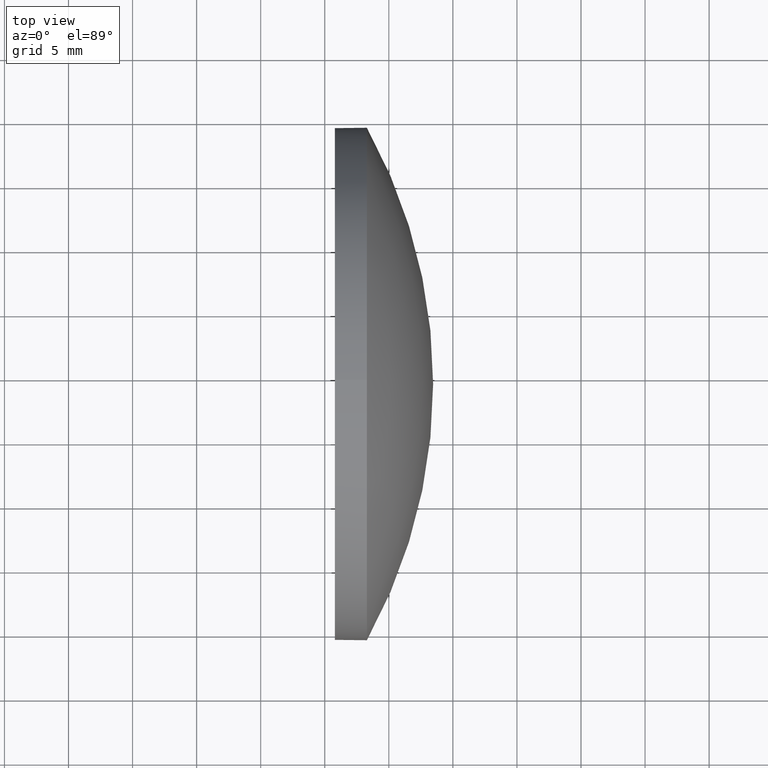
[diagram: clean part render]
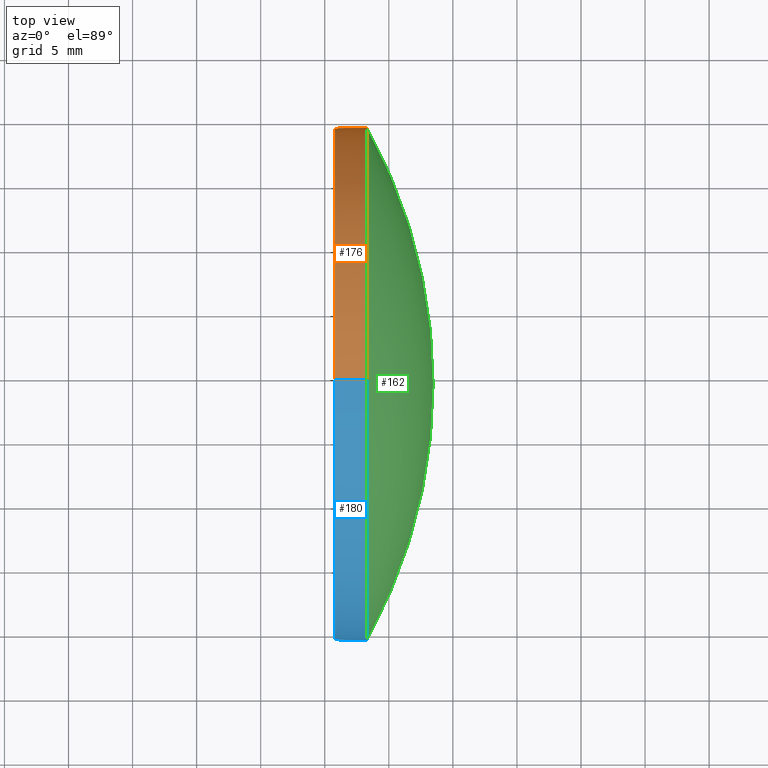
[diagram: same view with three faces highlighted in distinct colors, each labeled with its STEP entity id]
A machine part, top view with three faces highlighted in distinct colors.
Their STEP definitions:

[orange] entity #176 — the highlighted cylindrical surface (partial cylindrical patch) has radius 20 mm, axis along (-1, -0, -0).
#5 = EDGE_CURVE ( 'NONE', #145, #112, #186, .T. ) ;
#9 = CIRCLE ( 'NONE', #114, 20.00000000000000400 ) ;
#11 = CYLINDRICAL_SURFACE ( 'NONE', #54, 20.00000000000000400 ) ;
#12 = VERTEX_POINT ( 'NONE', #24 ) ;
#13 = LINE ( 'NONE', #149, #20 ) ;
#15 = CARTESIAN_POINT ( 'NONE',  ( 410.7899099392475400, -30.60755764646728500, 0.0000000000000000000 ) ) ;
#19 = DIRECTION ( 'NONE',  ( 0.0000000000000000000, 0.0000000000000000000, 1.000000000000000000 ) ) ;
#20 = VECTOR ( 'NONE', #146, 1000.000000000000000 ) ;
#23 = AXIS2_PLACEMENT_3D ( 'NONE', #15, #173, #115 ) ;
#24 = CARTESIAN_POINT ( 'NONE',  ( 413.2899099392475400, -30.60755764646728500, 20.00000000000000400 ) ) ;
#27 = AXIS2_PLACEMENT_3D ( 'NONE', #57, #31, #164 ) ;
#29 = CARTESIAN_POINT ( 'NONE',  ( 413.2899099392475400, -10.60755764646727600, 2.449293598294704500E-015 ) ) ;
#31 = DIRECTION ( 'NONE',  ( -1.000000000000000000, -0.0000000000000000000, -0.0000000000000000000 ) ) ;
#39 = EDGE_CURVE ( 'NONE', #12, #145, #13, .T. ) ;
#45 = VECTOR ( 'NONE', #163, 1000.000000000000000 ) ;
#47 = VERTEX_POINT ( 'NONE', #174 ) ;
#54 = AXIS2_PLACEMENT_3D ( 'NONE', #88, #178, #150 ) ;
#57 = CARTESIAN_POINT ( 'NONE',  ( 413.2899099392475400, -30.60755764646728500, 0.0000000000000000000 ) ) ;
#59 = CARTESIAN_POINT ( 'NONE',  ( 410.7899099392475400, -30.60755764646728100, -20.00000000000000400 ) ) ;
#85 = ORIENTED_EDGE ( 'NONE', *, *, #5, .F. ) ;
#88 = CARTESIAN_POINT ( 'NONE',  ( 406.8249563282615800, -30.60755764646728500, 0.0000000000000000000 ) ) ;
#89 = CARTESIAN_POINT ( 'NONE',  ( 406.8249563282615800, -30.60755764646728100, -20.00000000000000400 ) ) ;
#94 = EDGE_CURVE ( 'NONE', #47, #112, #102, .T. ) ;
#95 = EDGE_LOOP ( 'NONE', ( #103, #169, #85, #101, #123 ) ) ;
#100 = EDGE_CURVE ( 'NONE', #179, #47, #151, .T. ) ;
#101 = ORIENTED_EDGE ( 'NONE', *, *, #39, .F. ) ;
#102 = LINE ( 'NONE', #89, #45 ) ;
#103 = ORIENTED_EDGE ( 'NONE', *, *, #100, .T. ) ;
#112 = VERTEX_POINT ( 'NONE', #59 ) ;
#114 = AXIS2_PLACEMENT_3D ( 'NONE', #175, #136, #19 ) ;
#115 = DIRECTION ( 'NONE',  ( 0.0000000000000000000, 0.0000000000000000000, 1.000000000000000000 ) ) ;
#121 = CARTESIAN_POINT ( 'NONE',  ( 410.7899099392475400, -30.60755764646728500, 20.00000000000000400 ) ) ;
#123 = ORIENTED_EDGE ( 'NONE', *, *, #170, .T. ) ;
#136 = DIRECTION ( 'NONE',  ( -1.000000000000000000, -0.0000000000000000000, -0.0000000000000000000 ) ) ;
#145 = VERTEX_POINT ( 'NONE', #121 ) ;
#146 = DIRECTION ( 'NONE',  ( -1.000000000000000000, -0.0000000000000000000, -0.0000000000000000000 ) ) ;
#149 = CARTESIAN_POINT ( 'NONE',  ( 406.8249563282615800, -30.60755764646728500, 20.00000000000000400 ) ) ;
#150 = DIRECTION ( 'NONE',  ( 0.0000000000000000000, 0.0000000000000000000, 1.000000000000000000 ) ) ;
#151 = CIRCLE ( 'NONE', #27, 20.00000000000000400 ) ;
#158 = FACE_OUTER_BOUND ( 'NONE', #95, .T. ) ;
#163 = DIRECTION ( 'NONE',  ( -1.000000000000000000, -0.0000000000000000000, -0.0000000000000000000 ) ) ;
#164 = DIRECTION ( 'NONE',  ( 0.0000000000000000000, 0.0000000000000000000, 1.000000000000000000 ) ) ;
#169 = ORIENTED_EDGE ( 'NONE', *, *, #94, .T. ) ;
#170 = EDGE_CURVE ( 'NONE', #12, #179, #9, .T. ) ;
#173 = DIRECTION ( 'NONE',  ( -1.000000000000000000, -0.0000000000000000000, -0.0000000000000000000 ) ) ;
#174 = CARTESIAN_POINT ( 'NONE',  ( 413.2899099392475400, -30.60755764646728100, -20.00000000000000400 ) ) ;
#175 = CARTESIAN_POINT ( 'NONE',  ( 413.2899099392475400, -30.60755764646728500, 0.0000000000000000000 ) ) ;
#176 = ADVANCED_FACE ( 'NONE', ( #158 ), #11, .T. ) ;
#178 = DIRECTION ( 'NONE',  ( -1.000000000000000000, -0.0000000000000000000, -0.0000000000000000000 ) ) ;
#179 = VERTEX_POINT ( 'NONE', #29 ) ;
#186 = CIRCLE ( 'NONE', #23, 20.00000000000000400 ) ;

[blue] entity #180 — the highlighted cylindrical surface (partial cylindrical patch) has radius 20 mm, axis along (-1, -0, -0).
#6 = CARTESIAN_POINT ( 'NONE',  ( 413.2899099392475400, -30.60755764646728500, 0.0000000000000000000 ) ) ;
#8 = DIRECTION ( 'NONE',  ( -1.000000000000000000, -0.0000000000000000000, -0.0000000000000000000 ) ) ;
#12 = VERTEX_POINT ( 'NONE', #24 ) ;
#13 = LINE ( 'NONE', #149, #20 ) ;
#16 = VERTEX_POINT ( 'NONE', #148 ) ;
#20 = VECTOR ( 'NONE', #146, 1000.000000000000000 ) ;
#21 = FACE_OUTER_BOUND ( 'NONE', #50, .T. ) ;
#24 = CARTESIAN_POINT ( 'NONE',  ( 413.2899099392475400, -30.60755764646728500, 20.00000000000000400 ) ) ;
#30 = CYLINDRICAL_SURFACE ( 'NONE', #66, 20.00000000000000400 ) ;
#36 = AXIS2_PLACEMENT_3D ( 'NONE', #56, #8, #104 ) ;
#39 = EDGE_CURVE ( 'NONE', #12, #145, #13, .T. ) ;
#41 = CIRCLE ( 'NONE', #36, 20.00000000000000400 ) ;
#42 = ORIENTED_EDGE ( 'NONE', *, *, #153, .F. ) ;
#45 = VECTOR ( 'NONE', #163, 1000.000000000000000 ) ;
#47 = VERTEX_POINT ( 'NONE', #174 ) ;
#50 = EDGE_LOOP ( 'NONE', ( #83, #137, #58, #109, #42 ) ) ;
#55 = DIRECTION ( 'NONE',  ( -1.000000000000000000, -0.0000000000000000000, -0.0000000000000000000 ) ) ;
#56 = CARTESIAN_POINT ( 'NONE',  ( 413.2899099392475400, -30.60755764646728500, 0.0000000000000000000 ) ) ;
#58 = ORIENTED_EDGE ( 'NONE', *, *, #92, .T. ) ;
#59 = CARTESIAN_POINT ( 'NONE',  ( 410.7899099392475400, -30.60755764646728100, -20.00000000000000400 ) ) ;
#66 = AXIS2_PLACEMENT_3D ( 'NONE', #139, #74, #80 ) ;
#74 = DIRECTION ( 'NONE',  ( -1.000000000000000000, -0.0000000000000000000, -0.0000000000000000000 ) ) ;
#80 = DIRECTION ( 'NONE',  ( 0.0000000000000000000, 0.0000000000000000000, 1.000000000000000000 ) ) ;
#83 = ORIENTED_EDGE ( 'NONE', *, *, #94, .F. ) ;
#86 = AXIS2_PLACEMENT_3D ( 'NONE', #6, #120, #122 ) ;
#89 = CARTESIAN_POINT ( 'NONE',  ( 406.8249563282615800, -30.60755764646728100, -20.00000000000000400 ) ) ;
#92 = EDGE_CURVE ( 'NONE', #16, #12, #107, .T. ) ;
#94 = EDGE_CURVE ( 'NONE', #47, #112, #102, .T. ) ;
#96 = AXIS2_PLACEMENT_3D ( 'NONE', #119, #55, #138 ) ;
#102 = LINE ( 'NONE', #89, #45 ) ;
#104 = DIRECTION ( 'NONE',  ( 0.0000000000000000000, 0.0000000000000000000, 1.000000000000000000 ) ) ;
#107 = CIRCLE ( 'NONE', #86, 20.00000000000000400 ) ;
#109 = ORIENTED_EDGE ( 'NONE', *, *, #39, .T. ) ;
#111 = CIRCLE ( 'NONE', #96, 20.00000000000000400 ) ;
#112 = VERTEX_POINT ( 'NONE', #59 ) ;
#119 = CARTESIAN_POINT ( 'NONE',  ( 410.7899099392475400, -30.60755764646728500, 0.0000000000000000000 ) ) ;
#120 = DIRECTION ( 'NONE',  ( -1.000000000000000000, -0.0000000000000000000, -0.0000000000000000000 ) ) ;
#121 = CARTESIAN_POINT ( 'NONE',  ( 410.7899099392475400, -30.60755764646728500, 20.00000000000000400 ) ) ;
#122 = DIRECTION ( 'NONE',  ( 0.0000000000000000000, 0.0000000000000000000, 1.000000000000000000 ) ) ;
#127 = EDGE_CURVE ( 'NONE', #47, #16, #41, .T. ) ;
#137 = ORIENTED_EDGE ( 'NONE', *, *, #127, .T. ) ;
#138 = DIRECTION ( 'NONE',  ( 0.0000000000000000000, 0.0000000000000000000, 1.000000000000000000 ) ) ;
#139 = CARTESIAN_POINT ( 'NONE',  ( 406.8249563282615800, -30.60755764646728500, 0.0000000000000000000 ) ) ;
#145 = VERTEX_POINT ( 'NONE', #121 ) ;
#146 = DIRECTION ( 'NONE',  ( -1.000000000000000000, -0.0000000000000000000, -0.0000000000000000000 ) ) ;
#148 = CARTESIAN_POINT ( 'NONE',  ( 413.2899099392475400, -50.60755764646727100, 0.0000000000000000000 ) ) ;
#149 = CARTESIAN_POINT ( 'NONE',  ( 406.8249563282615800, -30.60755764646728500, 20.00000000000000400 ) ) ;
#153 = EDGE_CURVE ( 'NONE', #112, #145, #111, .T. ) ;
#163 = DIRECTION ( 'NONE',  ( -1.000000000000000000, -0.0000000000000000000, -0.0000000000000000000 ) ) ;
#174 = CARTESIAN_POINT ( 'NONE',  ( 413.2899099392475400, -30.60755764646728100, -20.00000000000000400 ) ) ;
#180 = ADVANCED_FACE ( 'NONE', ( #21 ), #30, .T. ) ;

[green] entity #162 — the highlighted spherical surface has radius 41.2697 mm.
#3 = AXIS2_PLACEMENT_3D ( 'NONE', #172, #131, #116 ) ;
#6 = CARTESIAN_POINT ( 'NONE',  ( 413.2899099392475400, -30.60755764646728500, 0.0000000000000000000 ) ) ;
#9 = CIRCLE ( 'NONE', #114, 20.00000000000000400 ) ;
#12 = VERTEX_POINT ( 'NONE', #24 ) ;
#16 = VERTEX_POINT ( 'NONE', #148 ) ;
#18 = VERTEX_POINT ( 'NONE', #161 ) ;
#19 = DIRECTION ( 'NONE',  ( 0.0000000000000000000, 0.0000000000000000000, 1.000000000000000000 ) ) ;
#24 = CARTESIAN_POINT ( 'NONE',  ( 413.2899099392475400, -30.60755764646728500, 20.00000000000000400 ) ) ;
#25 = CIRCLE ( 'NONE', #177, 41.26971953578328800 ) ;
#26 = DIRECTION ( 'NONE',  ( 0.0000000000000000000, -1.000000000000000000, -1.224646799147353200E-016 ) ) ;
#28 = SPHERICAL_SURFACE ( 'NONE', #105, 41.26971953578328800 ) ;
#29 = CARTESIAN_POINT ( 'NONE',  ( 413.2899099392475400, -10.60755764646727600, 2.449293598294704500E-015 ) ) ;
#60 = EDGE_CURVE ( 'NONE', #18, #179, #25, .T. ) ;
#63 = EDGE_LOOP ( 'NONE', ( #157, #76, #125, #118 ) ) ;
#64 = EDGE_CURVE ( 'NONE', #18, #16, #183, .T. ) ;
#75 = DIRECTION ( 'NONE',  ( 0.0000000000000000000, 0.0000000000000000000, 1.000000000000000000 ) ) ;
#76 = ORIENTED_EDGE ( 'NONE', *, *, #60, .T. ) ;
#86 = AXIS2_PLACEMENT_3D ( 'NONE', #6, #120, #122 ) ;
#92 = EDGE_CURVE ( 'NONE', #16, #12, #107, .T. ) ;
#98 = FACE_OUTER_BOUND ( 'NONE', #63, .T. ) ;
#105 = AXIS2_PLACEMENT_3D ( 'NONE', #152, #75, #181 ) ;
#107 = CIRCLE ( 'NONE', #86, 20.00000000000000400 ) ;
#114 = AXIS2_PLACEMENT_3D ( 'NONE', #175, #136, #19 ) ;
#116 = DIRECTION ( 'NONE',  ( -1.000000000000000000, 0.0000000000000000000, 0.0000000000000000000 ) ) ;
#118 = ORIENTED_EDGE ( 'NONE', *, *, #92, .F. ) ;
#120 = DIRECTION ( 'NONE',  ( -1.000000000000000000, -0.0000000000000000000, -0.0000000000000000000 ) ) ;
#122 = DIRECTION ( 'NONE',  ( 0.0000000000000000000, 0.0000000000000000000, 1.000000000000000000 ) ) ;
#125 = ORIENTED_EDGE ( 'NONE', *, *, #170, .F. ) ;
#131 = DIRECTION ( 'NONE',  ( 0.0000000000000000000, 0.0000000000000000000, -1.000000000000000000 ) ) ;
#135 = CARTESIAN_POINT ( 'NONE',  ( 377.1901904034642700, -30.60755764646726400, 0.0000000000000000000 ) ) ;
#136 = DIRECTION ( 'NONE',  ( -1.000000000000000000, -0.0000000000000000000, -0.0000000000000000000 ) ) ;
#148 = CARTESIAN_POINT ( 'NONE',  ( 413.2899099392475400, -50.60755764646727100, 0.0000000000000000000 ) ) ;
#152 = CARTESIAN_POINT ( 'NONE',  ( 377.1901904034642700, -30.60755764646726400, 0.0000000000000000000 ) ) ;
#157 = ORIENTED_EDGE ( 'NONE', *, *, #64, .F. ) ;
#160 = DIRECTION ( 'NONE',  ( 0.0000000000000000000, -1.224646799147353200E-016, 1.000000000000000000 ) ) ;
#161 = CARTESIAN_POINT ( 'NONE',  ( 418.4599099392475500, -30.60755764646726700, 0.0000000000000000000 ) ) ;
#162 = ADVANCED_FACE ( 'NONE', ( #98 ), #28, .T. ) ;
#170 = EDGE_CURVE ( 'NONE', #12, #179, #9, .T. ) ;
#172 = CARTESIAN_POINT ( 'NONE',  ( 377.1901904034642700, -30.60755764646726400, 0.0000000000000000000 ) ) ;
#175 = CARTESIAN_POINT ( 'NONE',  ( 413.2899099392475400, -30.60755764646728500, 0.0000000000000000000 ) ) ;
#177 = AXIS2_PLACEMENT_3D ( 'NONE', #135, #160, #26 ) ;
#179 = VERTEX_POINT ( 'NONE', #29 ) ;
#181 = DIRECTION ( 'NONE',  ( 0.0000000000000000000, -1.000000000000000000, 0.0000000000000000000 ) ) ;
#183 = CIRCLE ( 'NONE', #3, 41.26971953578328800 ) ;